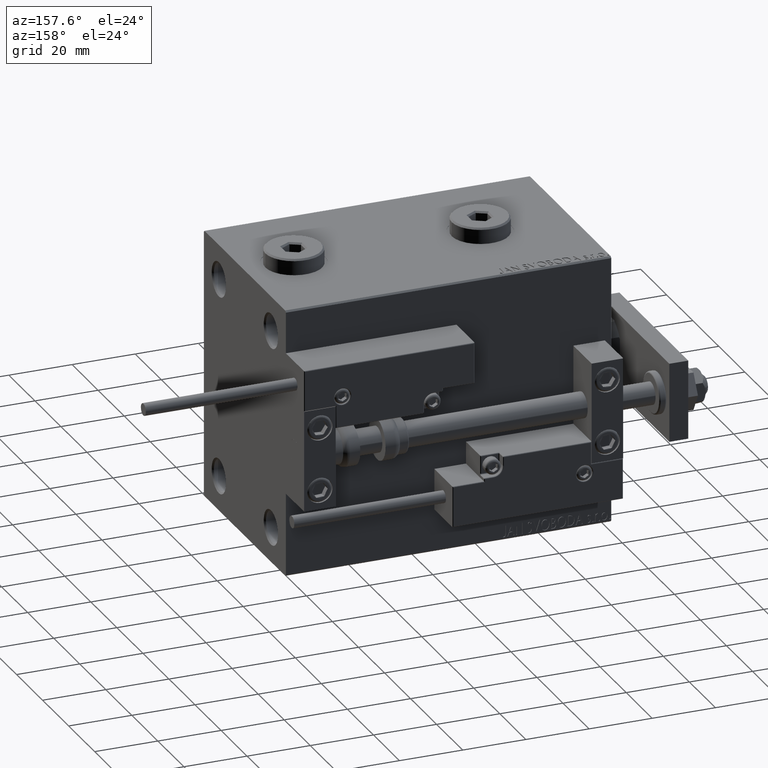
[diagram: clean part render]
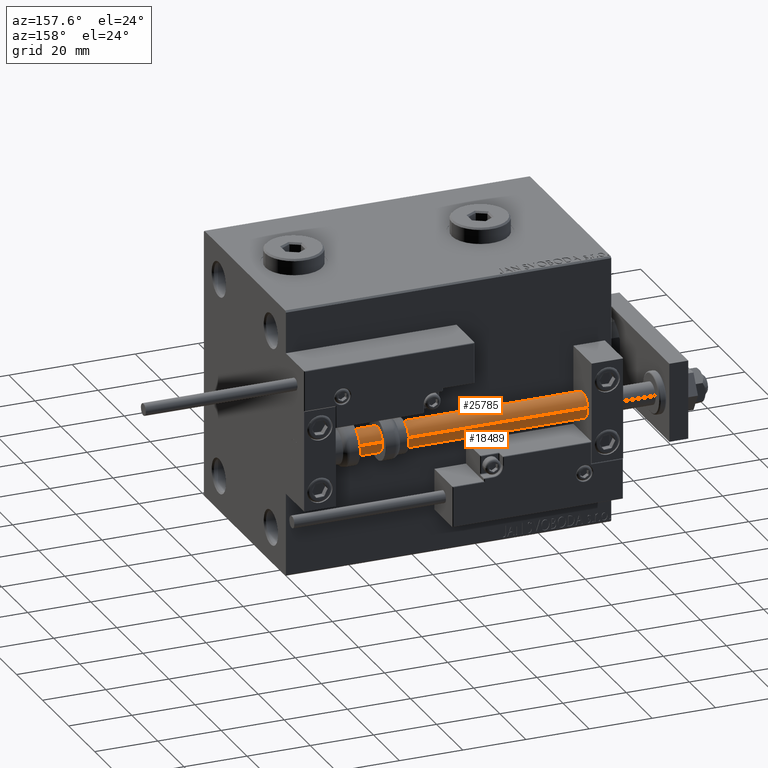
[diagram: same view with one multi-face feature highlighted, each face labeled with its STEP entity id]
A machine part, auxiliary view. The highlighted faces form ONE feature: a constant-radius fillet chain: 2 tangent blend faces with common blend radius 4 mm. The faces share edges in the B-rep.
Their STEP definitions:
[1] entity #18489 (Cylinder):
#2048 = CIRCLE ( 'NONE', #36075, 4.000000000000000000 ) ;
#3457 = DIRECTION ( 'NONE',  ( -1.000000000000000000, 0.000000000000000000, 0.000000000000000000 ) ) ;
#3573 = EDGE_CURVE ( 'NONE', #9468, #34182, #3806, .T. ) ;
#3806 = LINE ( 'NONE', #4074, #4593 ) ;
#4074 = CARTESIAN_POINT ( 'NONE',  ( 4.000000000000000000, 4.898587196589412829E-16, 103.0000000000000000 ) ) ;
#4176 = ORIENTED_EDGE ( 'NONE', *, *, #8499, .T. ) ;
#4593 = VECTOR ( 'NONE', #20526, 1000.000000000000000 ) ;
#5206 = ORIENTED_EDGE ( 'NONE', *, *, #3573, .F. ) ;
#6017 = ORIENTED_EDGE ( 'NONE', *, *, #21751, .T. ) ;
#6375 = CARTESIAN_POINT ( 'NONE',  ( 4.000000000000000000, 4.898587196589412829E-16, 103.0000000000000000 ) ) ;
#6662 = DIRECTION ( 'NONE',  ( -0.000000000000000000, -0.000000000000000000, -1.000000000000000000 ) ) ;
#8499 = EDGE_CURVE ( 'NONE', #13743, #34182, #24258, .T. ) ;
#8643 = DIRECTION ( 'NONE',  ( -0.000000000000000000, -0.000000000000000000, -1.000000000000000000 ) ) ;
#9468 = VERTEX_POINT ( 'NONE', #6375 ) ;
#12108 = VECTOR ( 'NONE', #8643, 1000.000000000000000 ) ;
#13743 = VERTEX_POINT ( 'NONE', #36806 ) ;
#14066 = DIRECTION ( 'NONE',  ( -0.000000000000000000, -0.000000000000000000, 1.000000000000000000 ) ) ;
#18489 = ADVANCED_FACE ( 'NONE', ( #43844 ), #34811, .T. ) ;
#19226 = CARTESIAN_POINT ( 'NONE',  ( 4.000000000000000000, 4.898587196589412829E-16, 2.000000000000029310 ) ) ;
#20526 = DIRECTION ( 'NONE',  ( -0.000000000000000000, -0.000000000000000000, -1.000000000000000000 ) ) ;
#21751 = EDGE_CURVE ( 'NONE', #31261, #13743, #49329, .T. ) ;
#23375 = DIRECTION ( 'NONE',  ( 0.000000000000000000, 0.000000000000000000, 1.000000000000000000 ) ) ;
#23441 = AXIS2_PLACEMENT_3D ( 'NONE', #35033, #14066, #51274 ) ;
#23639 = DIRECTION ( 'NONE',  ( 1.000000000000000000, 0.000000000000000000, 0.000000000000000000 ) ) ;
#24258 = CIRCLE ( 'NONE', #23441, 4.000000000000000000 ) ;
#26842 = CARTESIAN_POINT ( 'NONE',  ( 0.000000000000000000, 0.000000000000000000, 103.0000000000000000 ) ) ;
#31261 = VERTEX_POINT ( 'NONE', #42700 ) ;
#34182 = VERTEX_POINT ( 'NONE', #19226 ) ;
#34811 = CYLINDRICAL_SURFACE ( 'NONE', #50889, 4.000000000000000000 ) ;
#35033 = CARTESIAN_POINT ( 'NONE',  ( 0.000000000000000000, 0.000000000000000000, 2.000000000000029310 ) ) ;
#36075 = AXIS2_PLACEMENT_3D ( 'NONE', #44110, #23375, #23639 ) ;
#36806 = CARTESIAN_POINT ( 'NONE',  ( -4.000000000000000000, 0.000000000000000000, 2.000000000000029310 ) ) ;
#40941 = EDGE_LOOP ( 'NONE', ( #5206, #47271, #6017, #4176 ) ) ;
#42700 = CARTESIAN_POINT ( 'NONE',  ( -4.000000000000000000, 0.000000000000000000, 103.0000000000000000 ) ) ;
#43844 = FACE_OUTER_BOUND ( 'NONE', #40941, .T. ) ;
#44110 = CARTESIAN_POINT ( 'NONE',  ( 0.000000000000000000, 0.000000000000000000, 103.0000000000000000 ) ) ;
#44821 = CARTESIAN_POINT ( 'NONE',  ( -4.000000000000000000, 0.000000000000000000, 103.0000000000000000 ) ) ;
#47271 = ORIENTED_EDGE ( 'NONE', *, *, #47878, .F. ) ;
#47878 = EDGE_CURVE ( 'NONE', #31261, #9468, #2048, .T. ) ;
#49329 = LINE ( 'NONE', #44821, #12108 ) ;
#50889 = AXIS2_PLACEMENT_3D ( 'NONE', #26842, #6662, #3457 ) ;
#51274 = DIRECTION ( 'NONE',  ( 1.000000000000000000, 0.000000000000000000, 0.000000000000000000 ) ) ;
[2] entity #25785 (Cylinder):
#3573 = EDGE_CURVE ( 'NONE', #9468, #34182, #3806, .T. ) ;
#3669 = DIRECTION ( 'NONE',  ( -0.000000000000000000, -0.000000000000000000, -1.000000000000000000 ) ) ;
#3806 = LINE ( 'NONE', #4074, #4593 ) ;
#4074 = CARTESIAN_POINT ( 'NONE',  ( 4.000000000000000000, 4.898587196589412829E-16, 103.0000000000000000 ) ) ;
#4593 = VECTOR ( 'NONE', #20526, 1000.000000000000000 ) ;
#6375 = CARTESIAN_POINT ( 'NONE',  ( 4.000000000000000000, 4.898587196589412829E-16, 103.0000000000000000 ) ) ;
#7617 = ORIENTED_EDGE ( 'NONE', *, *, #11735, .T. ) ;
#8643 = DIRECTION ( 'NONE',  ( -0.000000000000000000, -0.000000000000000000, -1.000000000000000000 ) ) ;
#9468 = VERTEX_POINT ( 'NONE', #6375 ) ;
#11735 = EDGE_CURVE ( 'NONE', #34182, #13743, #35331, .T. ) ;
#12108 = VECTOR ( 'NONE', #8643, 1000.000000000000000 ) ;
#13743 = VERTEX_POINT ( 'NONE', #36806 ) ;
#14250 = ORIENTED_EDGE ( 'NONE', *, *, #49493, .F. ) ;
#15608 = CARTESIAN_POINT ( 'NONE',  ( 0.000000000000000000, 0.000000000000000000, 103.0000000000000000 ) ) ;
#19226 = CARTESIAN_POINT ( 'NONE',  ( 4.000000000000000000, 4.898587196589412829E-16, 2.000000000000029310 ) ) ;
#20526 = DIRECTION ( 'NONE',  ( -0.000000000000000000, -0.000000000000000000, -1.000000000000000000 ) ) ;
#20766 = EDGE_LOOP ( 'NONE', ( #14250, #44518, #7617, #46321 ) ) ;
#21751 = EDGE_CURVE ( 'NONE', #31261, #13743, #49329, .T. ) ;
#22729 = AXIS2_PLACEMENT_3D ( 'NONE', #25406, #24866, #41067 ) ;
#23195 = AXIS2_PLACEMENT_3D ( 'NONE', #15608, #3669, #31813 ) ;
#24866 = DIRECTION ( 'NONE',  ( -0.000000000000000000, -0.000000000000000000, 1.000000000000000000 ) ) ;
#25406 = CARTESIAN_POINT ( 'NONE',  ( 0.000000000000000000, 0.000000000000000000, 2.000000000000029310 ) ) ;
#25785 = ADVANCED_FACE ( 'NONE', ( #43551 ), #35803, .T. ) ;
#28197 = DIRECTION ( 'NONE',  ( 0.000000000000000000, 0.000000000000000000, 1.000000000000000000 ) ) ;
#31261 = VERTEX_POINT ( 'NONE', #42700 ) ;
#31813 = DIRECTION ( 'NONE',  ( -1.000000000000000000, 0.000000000000000000, 0.000000000000000000 ) ) ;
#34182 = VERTEX_POINT ( 'NONE', #19226 ) ;
#35331 = CIRCLE ( 'NONE', #22729, 4.000000000000000000 ) ;
#35803 = CYLINDRICAL_SURFACE ( 'NONE', #23195, 4.000000000000000000 ) ;
#36438 = DIRECTION ( 'NONE',  ( 1.000000000000000000, 0.000000000000000000, 0.000000000000000000 ) ) ;
#36806 = CARTESIAN_POINT ( 'NONE',  ( -4.000000000000000000, 0.000000000000000000, 2.000000000000029310 ) ) ;
#40237 = AXIS2_PLACEMENT_3D ( 'NONE', #48423, #28197, #36438 ) ;
#41067 = DIRECTION ( 'NONE',  ( 1.000000000000000000, 0.000000000000000000, 0.000000000000000000 ) ) ;
#42700 = CARTESIAN_POINT ( 'NONE',  ( -4.000000000000000000, 0.000000000000000000, 103.0000000000000000 ) ) ;
#43551 = FACE_OUTER_BOUND ( 'NONE', #20766, .T. ) ;
#44518 = ORIENTED_EDGE ( 'NONE', *, *, #3573, .T. ) ;
#44821 = CARTESIAN_POINT ( 'NONE',  ( -4.000000000000000000, 0.000000000000000000, 103.0000000000000000 ) ) ;
#46321 = ORIENTED_EDGE ( 'NONE', *, *, #21751, .F. ) ;
#48423 = CARTESIAN_POINT ( 'NONE',  ( 0.000000000000000000, 0.000000000000000000, 103.0000000000000000 ) ) ;
#49329 = LINE ( 'NONE', #44821, #12108 ) ;
#49493 = EDGE_CURVE ( 'NONE', #9468, #31261, #52182, .T. ) ;
#52182 = CIRCLE ( 'NONE', #40237, 4.000000000000000000 ) ;